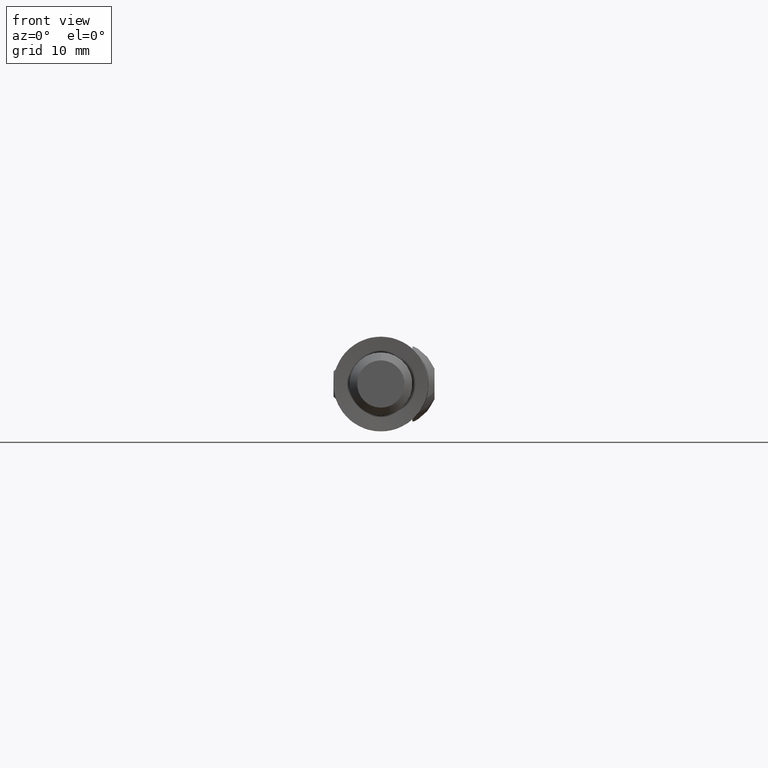
[diagram: clean part render]
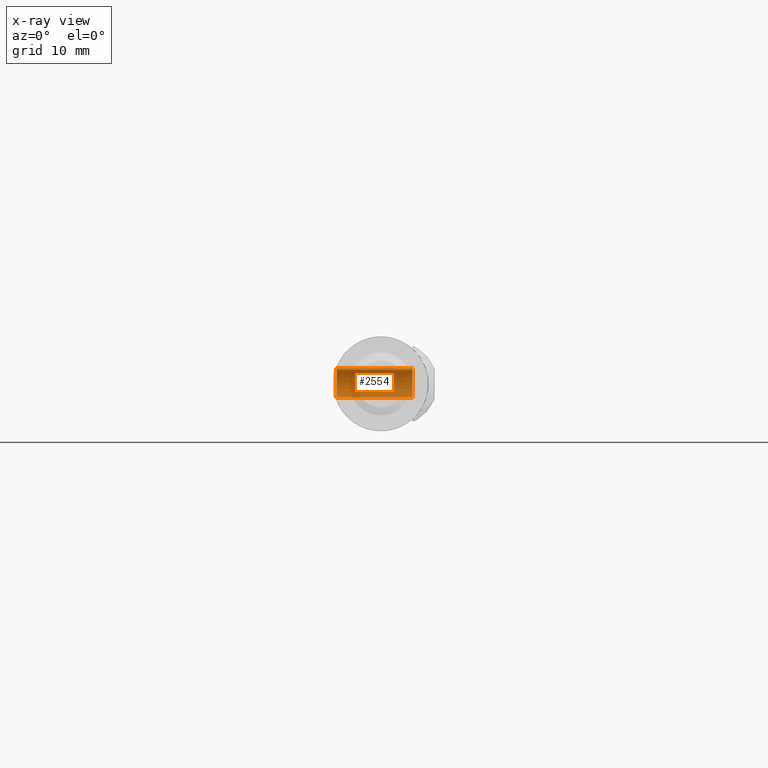
[diagram: x-ray — body ghosted, one internal face saturated and labeled with its STEP entity id]
A machine part, front view, then the same camera in x-ray: the body is ghosted and one INTERNAL B-rep face — a face not visible from any outside direction — is saturated and labeled: STEP entity #2554.
In plain terms, the highlighted cylindrical surface (edge-blend (fillet) strip) has radius 2.0095 mm, axis along (1, 0, 0).
Its self-contained STEP definition (entity closure, byte-faithful):
#43 = DIRECTION ( 'NONE',  ( 0.0000000000000000000, -1.000000000000000000, 0.0000000000000000000 ) ) ;
#592 = DIRECTION ( 'NONE',  ( 1.110223024625144200E-016, 0.0000000000000000000, -1.000000000000000000 ) ) ;
#603 = AXIS2_PLACEMENT_3D ( 'NONE', #16135, #1951, #592 ) ;
#831 = VERTEX_POINT ( 'NONE', #13928 ) ;
#1394 = FACE_OUTER_BOUND ( 'NONE', #9591, .T. ) ;
#1625 = VERTEX_POINT ( 'NONE', #15405 ) ;
#1951 = DIRECTION ( 'NONE',  ( 0.0000000000000000000, -1.000000000000000000, 0.0000000000000000000 ) ) ;
#2428 = DIRECTION ( 'NONE',  ( 1.110223024625144200E-016, 0.0000000000000000000, -1.000000000000000000 ) ) ;
#2554 = ADVANCED_FACE ( 'NONE', ( #1394 ), #2603, .T. ) ;
#2603 = CYLINDRICAL_SURFACE ( 'NONE', #16365, 2.009500000000020500 ) ;
#2770 = CIRCLE ( 'NONE', #603, 2.009500000000021400 ) ;
#3347 = ORIENTED_EDGE ( 'NONE', *, *, #12122, .F. ) ;
#3496 = EDGE_CURVE ( 'NONE', #831, #3928, #8724, .T. ) ;
#3928 = VERTEX_POINT ( 'NONE', #7437 ) ;
#4384 = VERTEX_POINT ( 'NONE', #6257 ) ;
#5051 = CARTESIAN_POINT ( 'NONE',  ( 0.0000000000000000000, 12.39810000000000300, 0.0000000000000000000 ) ) ;
#6257 = CARTESIAN_POINT ( 'NONE',  ( 2.230993167984251200E-016, 2.799999999999997200, -2.009500000000021400 ) ) ;
#6301 = DIRECTION ( 'NONE',  ( 0.0000000000000000000, -1.000000000000000000, 0.0000000000000000000 ) ) ;
#7437 = CARTESIAN_POINT ( 'NONE',  ( 2.299345749023786300E-017, 12.39810000000000300, 2.009499999999997000 ) ) ;
#7771 = CARTESIAN_POINT ( 'NONE',  ( 2.230993167984250200E-016, 0.0000000000000000000, -2.009500000000020500 ) ) ;
#8106 = VECTOR ( 'NONE', #10890, 1000.000000000000000 ) ;
#8724 = CIRCLE ( 'NONE', #13547, 2.009500000000019200 ) ;
#9591 = EDGE_LOOP ( 'NONE', ( #15390, #13080, #12897, #3347 ) ) ;
#10080 = EDGE_CURVE ( 'NONE', #3928, #1625, #13167, .T. ) ;
#10744 = DIRECTION ( 'NONE',  ( 0.0000000000000000000, -1.000000000000000000, 0.0000000000000000000 ) ) ;
#10890 = DIRECTION ( 'NONE',  ( 0.0000000000000000000, -1.000000000000000000, 0.0000000000000000000 ) ) ;
#11031 = EDGE_CURVE ( 'NONE', #4384, #1625, #2770, .T. ) ;
#12122 = EDGE_CURVE ( 'NONE', #831, #4384, #13920, .T. ) ;
#12897 = ORIENTED_EDGE ( 'NONE', *, *, #11031, .F. ) ;
#12921 = VECTOR ( 'NONE', #43, 1000.000000000000000 ) ;
#13080 = ORIENTED_EDGE ( 'NONE', *, *, #10080, .T. ) ;
#13167 = LINE ( 'NONE', #15829, #8106 ) ;
#13381 = CARTESIAN_POINT ( 'NONE',  ( 0.0000000000000000000, 0.0000000000000000000, 0.0000000000000000000 ) ) ;
#13547 = AXIS2_PLACEMENT_3D ( 'NONE', #5051, #6301, #2428 ) ;
#13920 = LINE ( 'NONE', #7771, #12921 ) ;
#13928 = CARTESIAN_POINT ( 'NONE',  ( 2.230993167984248700E-016, 12.39810000000000300, -2.009500000000019200 ) ) ;
#15390 = ORIENTED_EDGE ( 'NONE', *, *, #3496, .T. ) ;
#15405 = CARTESIAN_POINT ( 'NONE',  ( 2.299345749023788200E-017, 2.799999999999997200, 2.009499999999999200 ) ) ;
#15829 = CARTESIAN_POINT ( 'NONE',  ( 2.299345749023812500E-017, 0.0000000000000000000, 2.009500000000020500 ) ) ;
#15932 = DIRECTION ( 'NONE',  ( 1.110223024625144200E-016, 0.0000000000000000000, -1.000000000000000000 ) ) ;
#16135 = CARTESIAN_POINT ( 'NONE',  ( 0.0000000000000000000, 2.799999999999997200, 0.0000000000000000000 ) ) ;
#16365 = AXIS2_PLACEMENT_3D ( 'NONE', #13381, #10744, #15932 ) ;